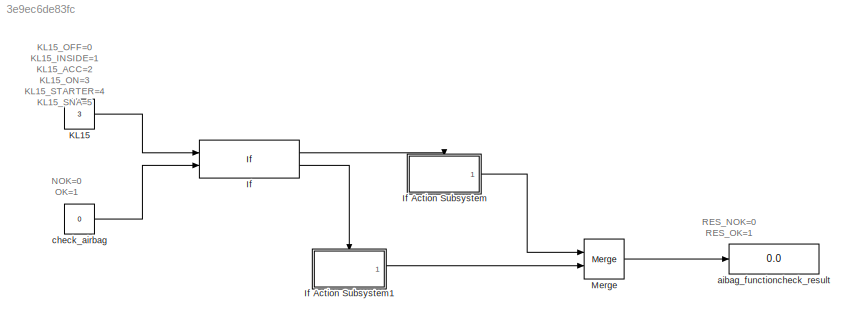
MODEL slx_3e9ec6de83fc
KIND model
CONFIG AbsTol = auto
CONFIG FixedStep = 0.1
CONFIG MaxStep = auto
CONFIG MinStep = auto
CONFIG RelTol = 1e-3
CONFIG SampleTimeConstraint = Unconstrained
CONFIG Solver = FixedStepAuto
CONFIG SolverMode = Auto
CONFIG SolverName = FixedStepAuto
CONFIG StartTime = 0.0
CONFIG StopTime = inf
BLOCK [If] If
  IfExpression = ((u1==2)|(u1==3)|(u1==4))&(u2==0)
  NumInputs = 2
  Ports = [2, 2]
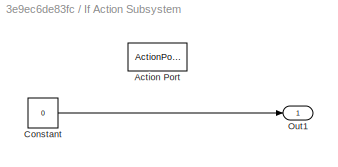
BLOCK [SubSystem] If Action Subsystem
  Ports = [0, 1, 0, 0, 0, 0, 0, 1]
  RequestExecContextInheritance = off
  TreatAsAtomicUnit = on
  Variant = off
BLOCK [ActionPort] If Action Subsystem/Action Port
  ActionType = then
BLOCK [Constant] If Action Subsystem/Constant
  Value = 0
BLOCK [Outport] If Action Subsystem/Out1
  IconDisplay = Port number
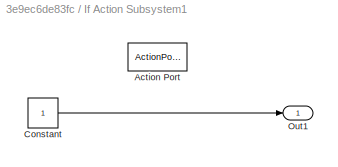
BLOCK [SubSystem] If Action Subsystem1
  Ports = [0, 1, 0, 0, 0, 0, 0, 1]
  RequestExecContextInheritance = off
  TreatAsAtomicUnit = on
  Variant = off
BLOCK [ActionPort] If Action Subsystem1/Action Port
  ActionType = else
BLOCK [Constant] If Action Subsystem1/Constant
BLOCK [Outport] If Action Subsystem1/Out1
  IconDisplay = Port number
BLOCK [Constant] KL15 
  Value = 3
BLOCK [Merge] Merge
  Ports = [2, 1]
BLOCK [Display] aibag_functioncheck_result
  Decimation = 1
  Ports = [1]
BLOCK [Constant] check_airbag
  Value = 0
ANNOTATION (root): KL15_OFF=0 KL15_INSIDE=1 KL15_ACC=2 KL15_ON=3 KL15_STARTER=4 KL15_SNA=5
ANNOTATION (root): RES_NOK=0 RES_OK=1
ANNOTATION (root): NOK=0 OK=1
LINE If Action Subsystem/Constant:1 -> If Action Subsystem/Out1:1
LINE If Action Subsystem1/Constant:1 -> If Action Subsystem1/Out1:1
LINE If Action Subsystem1:1 -> Merge:2
LINE If Action Subsystem:1 -> Merge:1
LINE If:1 -> If Action Subsystem:ifaction
LINE If:2 -> If Action Subsystem1:ifaction
LINE KL15 :1 -> If:1
LINE Merge:1 -> aibag_functioncheck_result:1
LINE check_airbag:1 -> If:2
